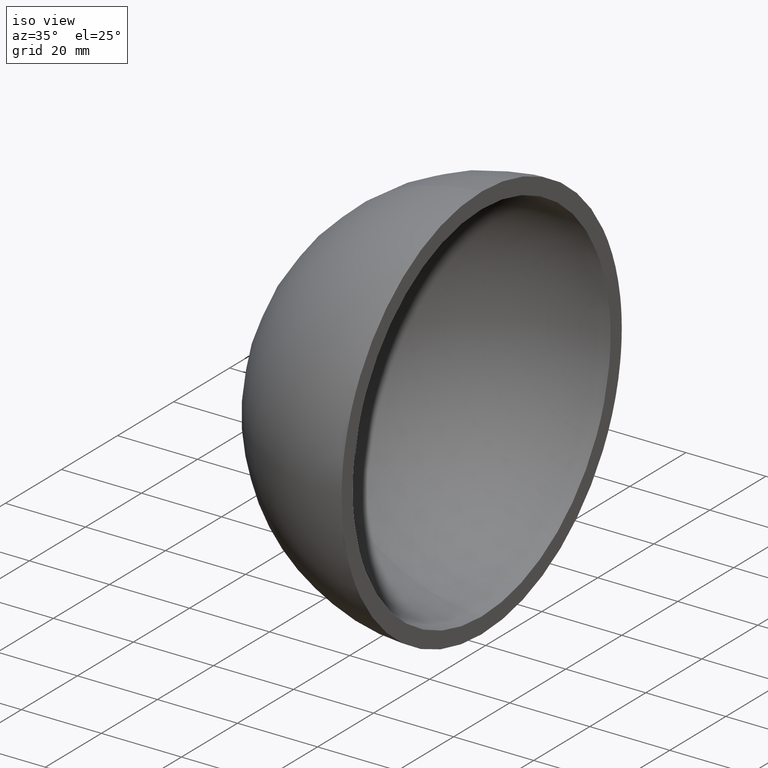
[diagram: clean part render]
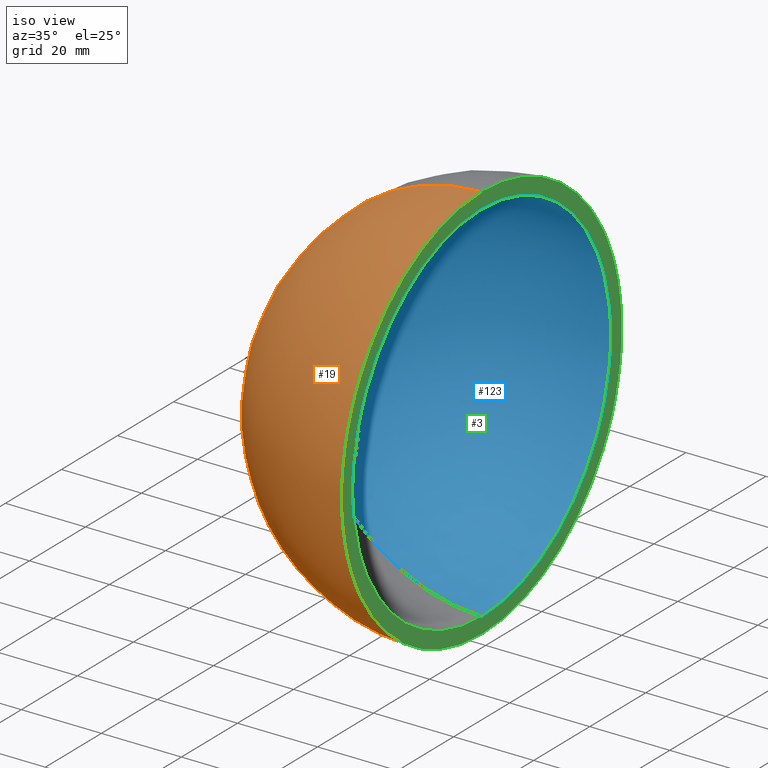
[diagram: same view with three faces highlighted in distinct colors, each labeled with its STEP entity id]
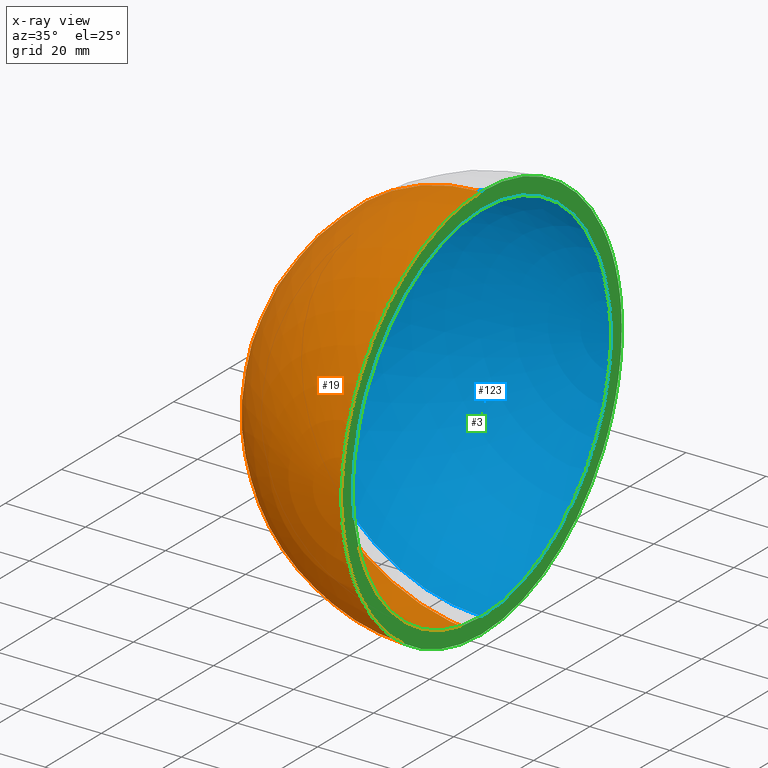
[diagram: x-ray of the same camera — body ghosted, the three highlighted faces saturated]
A machine part, iso view with three faces highlighted in distinct colors.
The next image is the same camera in x-ray (body ghosted, the three faces saturated) — at least one of them is partly hidden behind the body in this view.
Their STEP definitions:

[orange] entity #19 — the highlighted spherical surface has radius 50 mm.
#5 = DIRECTION ( 'NONE',  ( 0.0000000000000000000, 1.000000000000000000, 0.0000000000000000000 ) ) ;
#15 = CARTESIAN_POINT ( 'NONE',  ( 0.0000000000000000000, 0.0000000000000000000, 0.0000000000000000000 ) ) ;
#19 = ADVANCED_FACE ( 'NONE', ( #67 ), #155, .T. ) ;
#29 = CIRCLE ( 'NONE', #124, 49.98999899979995100 ) ;
#31 = CIRCLE ( 'NONE', #57, 50.00000000000000000 ) ;
#32 = DIRECTION ( 'NONE',  ( 0.0000000000000000000, 0.0000000000000000000, 1.000000000000000000 ) ) ;
#47 = DIRECTION ( 'NONE',  ( 0.0000000000000000000, -1.224646799147353200E-016, -1.000000000000000000 ) ) ;
#49 = CARTESIAN_POINT ( 'NONE',  ( 0.0000000000000000000, 0.0000000000000000000, 0.0000000000000000000 ) ) ;
#50 = VERTEX_POINT ( 'NONE', #116 ) ;
#52 = AXIS2_PLACEMENT_3D ( 'NONE', #133, #5, #32 ) ;
#55 = ORIENTED_EDGE ( 'NONE', *, *, #143, .F. ) ;
#57 = AXIS2_PLACEMENT_3D ( 'NONE', #49, #137, #47 ) ;
#65 = EDGE_CURVE ( 'NONE', #74, #50, #29, .T. ) ;
#66 = ORIENTED_EDGE ( 'NONE', *, *, #106, .T. ) ;
#67 = FACE_OUTER_BOUND ( 'NONE', #165, .T. ) ;
#68 = AXIS2_PLACEMENT_3D ( 'NONE', #15, #113, #110 ) ;
#74 = VERTEX_POINT ( 'NONE', #169 ) ;
#75 = CARTESIAN_POINT ( 'NONE',  ( -50.00000000000000000, 0.0000000000000000000, 3.061616997868383000E-015 ) ) ;
#76 = CARTESIAN_POINT ( 'NONE',  ( -0.9999999999999922300, 0.0000000000000000000, 0.0000000000000000000 ) ) ;
#77 = ORIENTED_EDGE ( 'NONE', *, *, #65, .F. ) ;
#82 = VERTEX_POINT ( 'NONE', #75 ) ;
#88 = CIRCLE ( 'NONE', #52, 50.00000000000000000 ) ;
#101 = DIRECTION ( 'NONE',  ( 0.0000000000000000000, 0.0000000000000000000, -1.000000000000000000 ) ) ;
#106 = EDGE_CURVE ( 'NONE', #82, #50, #31, .T. ) ;
#110 = DIRECTION ( 'NONE',  ( 0.0000000000000000000, 0.0000000000000000000, 1.000000000000000000 ) ) ;
#113 = DIRECTION ( 'NONE',  ( 0.0000000000000000000, -1.000000000000000000, 0.0000000000000000000 ) ) ;
#116 = CARTESIAN_POINT ( 'NONE',  ( -0.9999999999999922300, -6.122009226448439700E-015, -49.98999899979994400 ) ) ;
#124 = AXIS2_PLACEMENT_3D ( 'NONE', #76, #152, #101 ) ;
#133 = CARTESIAN_POINT ( 'NONE',  ( 0.0000000000000000000, 0.0000000000000000000, 0.0000000000000000000 ) ) ;
#137 = DIRECTION ( 'NONE',  ( 0.0000000000000000000, -1.000000000000000000, 1.224646799147353200E-016 ) ) ;
#143 = EDGE_CURVE ( 'NONE', #82, #74, #88, .T. ) ;
#152 = DIRECTION ( 'NONE',  ( 1.000000000000000000, -0.0000000000000000000, -0.0000000000000000000 ) ) ;
#155 = SPHERICAL_SURFACE ( 'NONE', #68, 50.00000000000000000 ) ;
#165 = EDGE_LOOP ( 'NONE', ( #55, #66, #77 ) ) ;
#169 = CARTESIAN_POINT ( 'NONE',  ( -0.9999999999999922300, 0.0000000000000000000, 49.98999899979994400 ) ) ;

[blue] entity #123 — the highlighted spherical surface has radius 46 mm.
#2 = SPHERICAL_SURFACE ( 'NONE', #10, 46.00000000000000000 ) ;
#6 = CARTESIAN_POINT ( 'NONE',  ( -0.9999999999999933400, -5.632043980944954400E-015, -45.98912915026767900 ) ) ;
#10 = AXIS2_PLACEMENT_3D ( 'NONE', #45, #111, #140 ) ;
#14 = CARTESIAN_POINT ( 'NONE',  ( -0.9999999999999933400, 0.0000000000000000000, 45.98912915026767900 ) ) ;
#17 = CIRCLE ( 'NONE', #158, 46.00000000000000000 ) ;
#21 = AXIS2_PLACEMENT_3D ( 'NONE', #78, #62, #153 ) ;
#28 = VERTEX_POINT ( 'NONE', #14 ) ;
#34 = DIRECTION ( 'NONE',  ( 0.0000000000000000000, 0.0000000000000000000, 1.000000000000000000 ) ) ;
#43 = EDGE_CURVE ( 'NONE', #159, #28, #144, .T. ) ;
#45 = CARTESIAN_POINT ( 'NONE',  ( 0.0000000000000000000, 0.0000000000000000000, 0.0000000000000000000 ) ) ;
#58 = DIRECTION ( 'NONE',  ( 0.0000000000000000000, -1.000000000000000000, 1.224646799147353200E-016 ) ) ;
#59 = DIRECTION ( 'NONE',  ( 0.0000000000000000000, 1.000000000000000000, 0.0000000000000000000 ) ) ;
#62 = DIRECTION ( 'NONE',  ( 1.000000000000000000, -0.0000000000000000000, -0.0000000000000000000 ) ) ;
#70 = ORIENTED_EDGE ( 'NONE', *, *, #112, .F. ) ;
#73 = CARTESIAN_POINT ( 'NONE',  ( 0.0000000000000000000, 0.0000000000000000000, 0.0000000000000000000 ) ) ;
#78 = CARTESIAN_POINT ( 'NONE',  ( -0.9999999999999933400, 0.0000000000000000000, 0.0000000000000000000 ) ) ;
#93 = CIRCLE ( 'NONE', #121, 46.00000000000000000 ) ;
#105 = ORIENTED_EDGE ( 'NONE', *, *, #146, .T. ) ;
#111 = DIRECTION ( 'NONE',  ( 0.0000000000000000000, -1.000000000000000000, 0.0000000000000000000 ) ) ;
#112 = EDGE_CURVE ( 'NONE', #172, #28, #93, .T. ) ;
#121 = AXIS2_PLACEMENT_3D ( 'NONE', #171, #59, #34 ) ;
#123 = ADVANCED_FACE ( 'NONE', ( #156 ), #2, .F. ) ;
#129 = ORIENTED_EDGE ( 'NONE', *, *, #43, .T. ) ;
#134 = DIRECTION ( 'NONE',  ( 0.0000000000000000000, -1.224646799147353200E-016, -1.000000000000000000 ) ) ;
#135 = EDGE_LOOP ( 'NONE', ( #70, #105, #129 ) ) ;
#140 = DIRECTION ( 'NONE',  ( 0.0000000000000000000, 0.0000000000000000000, 1.000000000000000000 ) ) ;
#144 = CIRCLE ( 'NONE', #21, 45.98912915026767900 ) ;
#146 = EDGE_CURVE ( 'NONE', #172, #159, #17, .T. ) ;
#153 = DIRECTION ( 'NONE',  ( 0.0000000000000000000, 0.0000000000000000000, -1.000000000000000000 ) ) ;
#156 = FACE_OUTER_BOUND ( 'NONE', #135, .T. ) ;
#158 = AXIS2_PLACEMENT_3D ( 'NONE', #73, #58, #134 ) ;
#159 = VERTEX_POINT ( 'NONE', #6 ) ;
#164 = CARTESIAN_POINT ( 'NONE',  ( -46.00000000000000000, 0.0000000000000000000, 2.816687638038912400E-015 ) ) ;
#171 = CARTESIAN_POINT ( 'NONE',  ( 0.0000000000000000000, 0.0000000000000000000, 0.0000000000000000000 ) ) ;
#172 = VERTEX_POINT ( 'NONE', #164 ) ;

[green] entity #3 — the highlighted planar face has unit normal (-1, 0, 0).
#3 = ADVANCED_FACE ( 'NONE', ( #8, #83 ), #80, .F. ) ;
#6 = CARTESIAN_POINT ( 'NONE',  ( -0.9999999999999933400, -5.632043980944954400E-015, -45.98912915026767900 ) ) ;
#8 = FACE_BOUND ( 'NONE', #98, .T. ) ;
#14 = CARTESIAN_POINT ( 'NONE',  ( -0.9999999999999933400, 0.0000000000000000000, 45.98912915026767900 ) ) ;
#20 = EDGE_LOOP ( 'NONE', ( #154, #30 ) ) ;
#21 = AXIS2_PLACEMENT_3D ( 'NONE', #78, #62, #153 ) ;
#22 = AXIS2_PLACEMENT_3D ( 'NONE', #33, #99, #23 ) ;
#23 = DIRECTION ( 'NONE',  ( 0.0000000000000000000, 0.0000000000000000000, -1.000000000000000000 ) ) ;
#28 = VERTEX_POINT ( 'NONE', #14 ) ;
#29 = CIRCLE ( 'NONE', #124, 49.98999899979995100 ) ;
#30 = ORIENTED_EDGE ( 'NONE', *, *, #39, .T. ) ;
#33 = CARTESIAN_POINT ( 'NONE',  ( -0.9999999999999933400, 0.0000000000000000000, 0.0000000000000000000 ) ) ;
#37 = DIRECTION ( 'NONE',  ( 0.0000000000000000000, 0.0000000000000000000, 1.000000000000000000 ) ) ;
#39 = EDGE_CURVE ( 'NONE', #50, #74, #142, .T. ) ;
#40 = CARTESIAN_POINT ( 'NONE',  ( -0.9999999999999922300, 0.0000000000000000000, 0.0000000000000000000 ) ) ;
#43 = EDGE_CURVE ( 'NONE', #159, #28, #144, .T. ) ;
#48 = DIRECTION ( 'NONE',  ( 0.0000000000000000000, 0.0000000000000000000, -1.000000000000000000 ) ) ;
#50 = VERTEX_POINT ( 'NONE', #116 ) ;
#54 = AXIS2_PLACEMENT_3D ( 'NONE', #40, #127, #48 ) ;
#62 = DIRECTION ( 'NONE',  ( 1.000000000000000000, -0.0000000000000000000, -0.0000000000000000000 ) ) ;
#64 = DIRECTION ( 'NONE',  ( -1.000000000000000000, 0.0000000000000000000, 0.0000000000000000000 ) ) ;
#65 = EDGE_CURVE ( 'NONE', #74, #50, #29, .T. ) ;
#69 = CIRCLE ( 'NONE', #22, 45.98912915026767900 ) ;
#74 = VERTEX_POINT ( 'NONE', #169 ) ;
#76 = CARTESIAN_POINT ( 'NONE',  ( -0.9999999999999922300, 0.0000000000000000000, 0.0000000000000000000 ) ) ;
#78 = CARTESIAN_POINT ( 'NONE',  ( -0.9999999999999933400, 0.0000000000000000000, 0.0000000000000000000 ) ) ;
#80 = PLANE ( 'NONE',  #85 ) ;
#83 = FACE_OUTER_BOUND ( 'NONE', #20, .T. ) ;
#85 = AXIS2_PLACEMENT_3D ( 'NONE', #103, #64, #37 ) ;
#91 = ORIENTED_EDGE ( 'NONE', *, *, #43, .F. ) ;
#94 = EDGE_CURVE ( 'NONE', #28, #159, #69, .T. ) ;
#98 = EDGE_LOOP ( 'NONE', ( #122, #91 ) ) ;
#99 = DIRECTION ( 'NONE',  ( 1.000000000000000000, -0.0000000000000000000, -0.0000000000000000000 ) ) ;
#101 = DIRECTION ( 'NONE',  ( 0.0000000000000000000, 0.0000000000000000000, -1.000000000000000000 ) ) ;
#103 = CARTESIAN_POINT ( 'NONE',  ( -0.9999999999999926700, 0.0000000000000000000, 45.98912915026767900 ) ) ;
#116 = CARTESIAN_POINT ( 'NONE',  ( -0.9999999999999922300, -6.122009226448439700E-015, -49.98999899979994400 ) ) ;
#122 = ORIENTED_EDGE ( 'NONE', *, *, #94, .F. ) ;
#124 = AXIS2_PLACEMENT_3D ( 'NONE', #76, #152, #101 ) ;
#127 = DIRECTION ( 'NONE',  ( 1.000000000000000000, -0.0000000000000000000, -0.0000000000000000000 ) ) ;
#142 = CIRCLE ( 'NONE', #54, 49.98999899979995100 ) ;
#144 = CIRCLE ( 'NONE', #21, 45.98912915026767900 ) ;
#152 = DIRECTION ( 'NONE',  ( 1.000000000000000000, -0.0000000000000000000, -0.0000000000000000000 ) ) ;
#153 = DIRECTION ( 'NONE',  ( 0.0000000000000000000, 0.0000000000000000000, -1.000000000000000000 ) ) ;
#154 = ORIENTED_EDGE ( 'NONE', *, *, #65, .T. ) ;
#159 = VERTEX_POINT ( 'NONE', #6 ) ;
#169 = CARTESIAN_POINT ( 'NONE',  ( -0.9999999999999922300, 0.0000000000000000000, 49.98999899979994400 ) ) ;